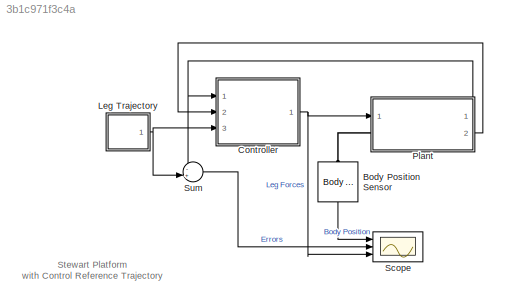
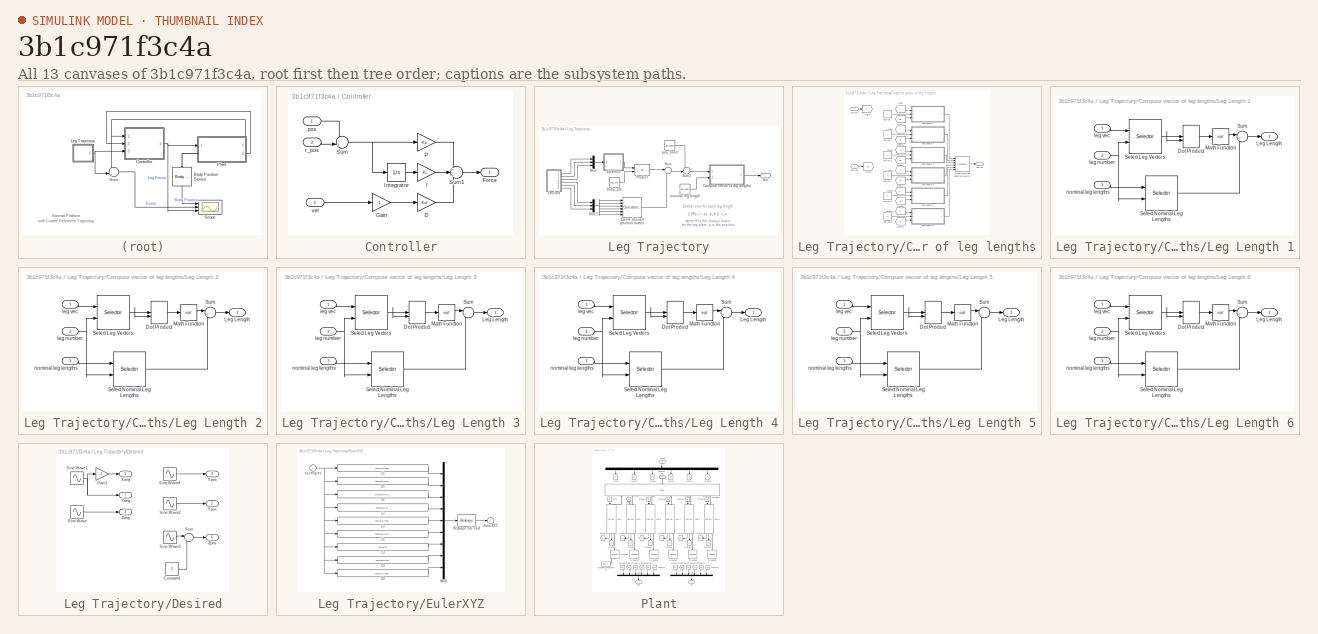
[diagram: thumbnail index - all 13 canvases of the model, root first then tree order]
MODEL slx_3b1c971f3c4a
KIND model
CONFIG AbsTol = auto
CONFIG EnableMultiTasking = on
CONFIG FixedStep = auto
CONFIG InitFcn = find_system(gcs,'FollowLinks', 'on', 'LookUnderMasks', 'all');
CONFIG MaxStep = auto
CONFIG MinStep = auto
CONFIG PostLoadFcn = find_system(gcs,'FollowLinks', 'on', 'LookUnderMasks', 'all');
CONFIG PreLoadFcn = mech_stewartplatform_dat
CONFIG RelTol = 1e-3
CONFIG SampleTimeConstraint = Unconstrained
CONFIG Solver = ode45
CONFIG SolverName = ode45
CONFIG StartTime = 0.0
CONFIG StopTime = inf
BLOCK [Reference] Body Position Sensor  REF=mblibv1/Sensors & 
Actuators/Body Sensor
  Ports = [0, 1, 0, 0, 0, 1]
  SourceBlock = mblibv1/Sensors & \nActuators/Body Sensor
  SourceProductBaseCode = MS
  SourceProductName = Simscape Multibody
  SourceType = Body Sensor
BLOCK [SubSystem] Controller
  Ports = [3, 1]
  RequestExecContextInheritance = off
  Variant = off
BLOCK [Gain] Controller/D
  Gain = Kd
BLOCK [Outport] Controller/Force
  IconDisplay = Port number
BLOCK [Gain] Controller/Gain
  Gain = -1
BLOCK [Gain] Controller/I
  Gain = Ki
BLOCK [Integrator] Controller/Integrator
  InitialCondition = (upper_leg_mass+lower_leg_mass+(top_mass*1.3/6))*9.81/Ki
  Ports = [1, 1]
  ZeroCross = off
BLOCK [Gain] Controller/P
  Gain = Kp
BLOCK [Sum] Controller/Sum
  IconShape = round
  Inputs = -+|
  Ports = [2, 1]
BLOCK [Sum] Controller/Sum1
  IconShape = round
  Inputs = +++
  Ports = [3, 1]
BLOCK [Inport] Controller/pos
  IconDisplay = Port number
BLOCK [Inport] Controller/r_pos
  IconDisplay = Port number
  Port = 3
BLOCK [Inport] Controller/vel
  IconDisplay = Port number
  Port = 2
BLOCK [SubSystem] Leg Trajectory
  Ports = [0, 1]
  RequestExecContextInheritance = off
  Variant = off
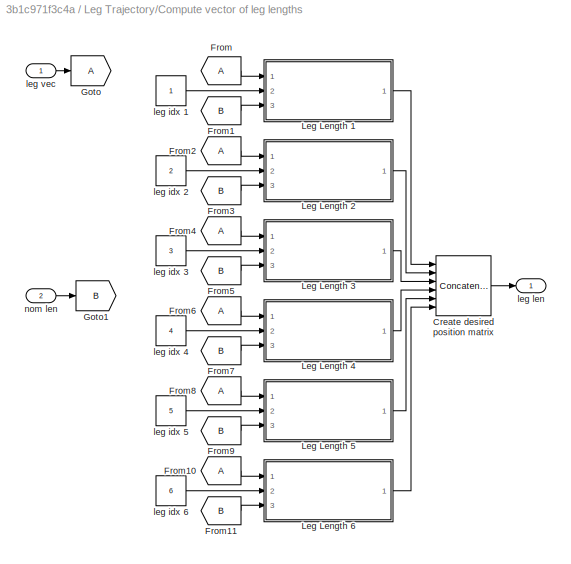
BLOCK [SubSystem] Leg Trajectory/Compute vector of leg lengths
  Ports = [2, 1]
  RequestExecContextInheritance = off
  TreatAsAtomicUnit = on
  Variant = off
BLOCK [Concatenate] Leg Trajectory/Compute vector of leg lengths/Create desired position matrix
  ConcatenateDimension = 2
  Mode = Multidimensional array
  NumInputs = 6
  Ports = [6, 1]
BLOCK [From] Leg Trajectory/Compute vector of leg lengths/From
  CloseFcn = tagdialog Close
BLOCK [From] Leg Trajectory/Compute vector of leg lengths/From1
  CloseFcn = tagdialog Close
  GotoTag = B
BLOCK [From] Leg Trajectory/Compute vector of leg lengths/From10
  CloseFcn = tagdialog Close
BLOCK [From] Leg Trajectory/Compute vector of leg lengths/From11
  CloseFcn = tagdialog Close
  GotoTag = B
BLOCK [From] Leg Trajectory/Compute vector of leg lengths/From2
  CloseFcn = tagdialog Close
BLOCK [From] Leg Trajectory/Compute vector of leg lengths/From3
  CloseFcn = tagdialog Close
  GotoTag = B
BLOCK [From] Leg Trajectory/Compute vector of leg lengths/From4
  CloseFcn = tagdialog Close
BLOCK [From] Leg Trajectory/Compute vector of leg lengths/From5
  CloseFcn = tagdialog Close
  GotoTag = B
BLOCK [From] Leg Trajectory/Compute vector of leg lengths/From6
  CloseFcn = tagdialog Close
BLOCK [From] Leg Trajectory/Compute vector of leg lengths/From7
  CloseFcn = tagdialog Close
  GotoTag = B
BLOCK [From] Leg Trajectory/Compute vector of leg lengths/From8
  CloseFcn = tagdialog Close
BLOCK [From] Leg Trajectory/Compute vector of leg lengths/From9
  CloseFcn = tagdialog Close
  GotoTag = B
BLOCK [Goto] Leg Trajectory/Compute vector of leg lengths/Goto
BLOCK [Goto] Leg Trajectory/Compute vector of leg lengths/Goto1
  GotoTag = B
BLOCK [SubSystem] Leg Trajectory/Compute vector of leg lengths/Leg Length 1
  Ports = [3, 1]
  RequestExecContextInheritance = off
  Variant = off
BLOCK [DotProduct] Leg Trajectory/Compute vector of leg lengths/Leg Length 1/Dot Product
  InputSameDT = off
  OutDataTypeStr = Inherit: Inherit via internal rule
BLOCK [Outport] Leg Trajectory/Compute vector of leg lengths/Leg Length 1/Leg Length
  IconDisplay = Port number
BLOCK [Math] Leg Trajectory/Compute vector of leg lengths/Leg Length 1/Math Function
  Operator = sqrt
  Ports = [1, 1]
BLOCK [Selector] Leg Trajectory/Compute vector of leg lengths/Leg Length 1/Select Leg Vectors
  IndexOptions = Select all,Index vector (port)
  Indices = -1,1
  InputPortWidth = 3
  NumberOfDimensions = 2
  OutputSizes = 1
  Ports = [2, 1]
BLOCK [Selector] Leg Trajectory/Compute vector of leg lengths/Leg Length 1/Select Nominal Leg Lengths
  IndexOptions = Index vector (port)
  Indices = [1 3]
  InputPortWidth = 6
  OutputSizes = 1
  Ports = [2, 1]
BLOCK [Sum] Leg Trajectory/Compute vector of leg lengths/Leg Length 1/Sum
  IconShape = round
  Inputs = |+-
  Ports = [2, 1]
BLOCK [Inport] Leg Trajectory/Compute vector of leg lengths/Leg Length 1/leg number
  IconDisplay = Port number
  Port = 2
BLOCK [Inport] Leg Trajectory/Compute vector of leg lengths/Leg Length 1/leg vec
  IconDisplay = Port number
BLOCK [Inport] Leg Trajectory/Compute vector of leg lengths/Leg Length 1/nominal leg lengths
  IconDisplay = Port number
  Port = 3
BLOCK [SubSystem] Leg Trajectory/Compute vector of leg lengths/Leg Length 2
  Ports = [3, 1]
  RequestExecContextInheritance = off
  Variant = off
BLOCK [DotProduct] Leg Trajectory/Compute vector of leg lengths/Leg Length 2/Dot Product
  InputSameDT = off
  OutDataTypeStr = Inherit: Inherit via internal rule
BLOCK [Outport] Leg Trajectory/Compute vector of leg lengths/Leg Length 2/Leg Length
  IconDisplay = Port number
BLOCK [Math] Leg Trajectory/Compute vector of leg lengths/Leg Length 2/Math Function
  Operator = sqrt
  Ports = [1, 1]
BLOCK [Selector] Leg Trajectory/Compute vector of leg lengths/Leg Length 2/Select Leg Vectors
  IndexOptions = Select all,Index vector (port)
  Indices = -1,1
  InputPortWidth = 3
  NumberOfDimensions = 2
  OutputSizes = 1
  Ports = [2, 1]
BLOCK [Selector] Leg Trajectory/Compute vector of leg lengths/Leg Length 2/Select Nominal Leg Lengths
  IndexOptions = Index vector (port)
  Indices = [1 3]
  InputPortWidth = 6
  OutputSizes = 1
  Ports = [2, 1]
BLOCK [Sum] Leg Trajectory/Compute vector of leg lengths/Leg Length 2/Sum
  IconShape = round
  Inputs = |+-
  Ports = [2, 1]
BLOCK [Inport] Leg Trajectory/Compute vector of leg lengths/Leg Length 2/leg number
  IconDisplay = Port number
  Port = 2
BLOCK [Inport] Leg Trajectory/Compute vector of leg lengths/Leg Length 2/leg vec
  IconDisplay = Port number
BLOCK [Inport] Leg Trajectory/Compute vector of leg lengths/Leg Length 2/nominal leg lengths
  IconDisplay = Port number
  Port = 3
BLOCK [SubSystem] Leg Trajectory/Compute vector of leg lengths/Leg Length 3
  Ports = [3, 1]
  RequestExecContextInheritance = off
  Variant = off
BLOCK [DotProduct] Leg Trajectory/Compute vector of leg lengths/Leg Length 3/Dot Product
  InputSameDT = off
  OutDataTypeStr = Inherit: Inherit via internal rule
BLOCK [Outport] Leg Trajectory/Compute vector of leg lengths/Leg Length 3/Leg Length
  IconDisplay = Port number
BLOCK [Math] Leg Trajectory/Compute vector of leg lengths/Leg Length 3/Math Function
  Operator = sqrt
  Ports = [1, 1]
BLOCK [Selector] Leg Trajectory/Compute vector of leg lengths/Leg Length 3/Select Leg Vectors
  IndexOptions = Select all,Index vector (port)
  Indices = -1,1
  InputPortWidth = 3
  NumberOfDimensions = 2
  OutputSizes = 1
  Ports = [2, 1]
BLOCK [Selector] Leg Trajectory/Compute vector of leg lengths/Leg Length 3/Select Nominal Leg Lengths
  IndexOptions = Index vector (port)
  Indices = [1 3]
  InputPortWidth = 6
  OutputSizes = 1
  Ports = [2, 1]
BLOCK [Sum] Leg Trajectory/Compute vector of leg lengths/Leg Length 3/Sum
  IconShape = round
  Inputs = |+-
  Ports = [2, 1]
BLOCK [Inport] Leg Trajectory/Compute vector of leg lengths/Leg Length 3/leg number
  IconDisplay = Port number
  Port = 2
BLOCK [Inport] Leg Trajectory/Compute vector of leg lengths/Leg Length 3/leg vec
  IconDisplay = Port number
BLOCK [Inport] Leg Trajectory/Compute vector of leg lengths/Leg Length 3/nominal leg lengths
  IconDisplay = Port number
  Port = 3
BLOCK [SubSystem] Leg Trajectory/Compute vector of leg lengths/Leg Length 4
  Ports = [3, 1]
  RequestExecContextInheritance = off
  Variant = off
BLOCK [DotProduct] Leg Trajectory/Compute vector of leg lengths/Leg Length 4/Dot Product
  InputSameDT = off
  OutDataTypeStr = Inherit: Inherit via internal rule
BLOCK [Outport] Leg Trajectory/Compute vector of leg lengths/Leg Length 4/Leg Length
  IconDisplay = Port number
BLOCK [Math] Leg Trajectory/Compute vector of leg lengths/Leg Length 4/Math Function
  Operator = sqrt
  Ports = [1, 1]
BLOCK [Selector] Leg Trajectory/Compute vector of leg lengths/Leg Length 4/Select Leg Vectors
  IndexOptions = Select all,Index vector (port)
  Indices = -1,1
  InputPortWidth = 3
  NumberOfDimensions = 2
  OutputSizes = 1
  Ports = [2, 1]
BLOCK [Selector] Leg Trajectory/Compute vector of leg lengths/Leg Length 4/Select Nominal Leg Lengths
  IndexOptions = Index vector (port)
  Indices = [1 3]
  InputPortWidth = 6
  OutputSizes = 1
  Ports = [2, 1]
BLOCK [Sum] Leg Trajectory/Compute vector of leg lengths/Leg Length 4/Sum
  IconShape = round
  Inputs = |+-
  Ports = [2, 1]
BLOCK [Inport] Leg Trajectory/Compute vector of leg lengths/Leg Length 4/leg number
  IconDisplay = Port number
  Port = 2
BLOCK [Inport] Leg Trajectory/Compute vector of leg lengths/Leg Length 4/leg vec
  IconDisplay = Port number
BLOCK [Inport] Leg Trajectory/Compute vector of leg lengths/Leg Length 4/nominal leg lengths
  IconDisplay = Port number
  Port = 3
BLOCK [SubSystem] Leg Trajectory/Compute vector of leg lengths/Leg Length 5
  Ports = [3, 1]
  RequestExecContextInheritance = off
  Variant = off
BLOCK [DotProduct] Leg Trajectory/Compute vector of leg lengths/Leg Length 5/Dot Product
  InputSameDT = off
  OutDataTypeStr = Inherit: Inherit via internal rule
BLOCK [Outport] Leg Trajectory/Compute vector of leg lengths/Leg Length 5/Leg Length
  IconDisplay = Port number
BLOCK [Math] Leg Trajectory/Compute vector of leg lengths/Leg Length 5/Math Function
  Operator = sqrt
  Ports = [1, 1]
BLOCK [Selector] Leg Trajectory/Compute vector of leg lengths/Leg Length 5/Select Leg Vectors
  IndexOptions = Select all,Index vector (port)
  Indices = -1,1
  InputPortWidth = 3
  NumberOfDimensions = 2
  OutputSizes = 1
  Ports = [2, 1]
BLOCK [Selector] Leg Trajectory/Compute vector of leg lengths/Leg Length 5/Select Nominal Leg Lengths
  IndexOptions = Index vector (port)
  Indices = [1 3]
  InputPortWidth = 6
  OutputSizes = 1
  Ports = [2, 1]
BLOCK [Sum] Leg Trajectory/Compute vector of leg lengths/Leg Length 5/Sum
  IconShape = round
  Inputs = |+-
  Ports = [2, 1]
BLOCK [Inport] Leg Trajectory/Compute vector of leg lengths/Leg Length 5/leg number
  IconDisplay = Port number
  Port = 2
BLOCK [Inport] Leg Trajectory/Compute vector of leg lengths/Leg Length 5/leg vec
  IconDisplay = Port number
BLOCK [Inport] Leg Trajectory/Compute vector of leg lengths/Leg Length 5/nominal leg lengths
  IconDisplay = Port number
  Port = 3
BLOCK [SubSystem] Leg Trajectory/Compute vector of leg lengths/Leg Length 6
  Ports = [3, 1]
  RequestExecContextInheritance = off
  Variant = off
BLOCK [DotProduct] Leg Trajectory/Compute vector of leg lengths/Leg Length 6/Dot Product
  InputSameDT = off
  OutDataTypeStr = Inherit: Inherit via internal rule
BLOCK [Outport] Leg Trajectory/Compute vector of leg lengths/Leg Length 6/Leg Length
  IconDisplay = Port number
BLOCK [Math] Leg Trajectory/Compute vector of leg lengths/Leg Length 6/Math Function
  Operator = sqrt
  Ports = [1, 1]
BLOCK [Selector] Leg Trajectory/Compute vector of leg lengths/Leg Length 6/Select Leg Vectors
  IndexOptions = Select all,Index vector (port)
  Indices = -1,1
  InputPortWidth = 3
  NumberOfDimensions = 2
  OutputSizes = 1
  Ports = [2, 1]
BLOCK [Selector] Leg Trajectory/Compute vector of leg lengths/Leg Length 6/Select Nominal Leg Lengths
  IndexOptions = Index vector (port)
  Indices = [1 3]
  InputPortWidth = 6
  OutputSizes = 1
  Ports = [2, 1]
BLOCK [Sum] Leg Trajectory/Compute vector of leg lengths/Leg Length 6/Sum
  IconShape = round
  Inputs = |+-
  Ports = [2, 1]
BLOCK [Inport] Leg Trajectory/Compute vector of leg lengths/Leg Length 6/leg number
  IconDisplay = Port number
  Port = 2
BLOCK [Inport] Leg Trajectory/Compute vector of leg lengths/Leg Length 6/leg vec
  IconDisplay = Port number
BLOCK [Inport] Leg Trajectory/Compute vector of leg lengths/Leg Length 6/nominal leg lengths
  IconDisplay = Port number
  Port = 3
BLOCK [Constant] Leg Trajectory/Compute vector of leg lengths/leg idx 1
BLOCK [Constant] Leg Trajectory/Compute vector of leg lengths/leg idx 2
  Value = 2
BLOCK [Constant] Leg Trajectory/Compute vector of leg lengths/leg idx 3
  Value = 3
BLOCK [Constant] Leg Trajectory/Compute vector of leg lengths/leg idx 4
  Value = 4
BLOCK [Constant] Leg Trajectory/Compute vector of leg lengths/leg idx 5
  Value = 5
BLOCK [Constant] Leg Trajectory/Compute vector of leg lengths/leg idx 6
  Value = 6
BLOCK [Outport] Leg Trajectory/Compute vector of leg lengths/leg len
  IconDisplay = Port number
BLOCK [Inport] Leg Trajectory/Compute vector of leg lengths/leg vec
  IconDisplay = Port number
BLOCK [Inport] Leg Trajectory/Compute vector of leg lengths/nom len
  IconDisplay = Port number
  Port = 2
BLOCK [Concatenate] Leg Trajectory/Create desired position matrix
  ConcatenateDimension = 2
  Mode = Multidimensional array
  NumInputs = 6
  Ports = [6, 1]
BLOCK [SubSystem] Leg Trajectory/Desired
  Ports = [0, 6]
  RequestExecContextInheritance = off
  Variant = off
BLOCK [Constant] Leg Trajectory/Desired/Constant1
  Value = 3
BLOCK [Gain] Leg Trajectory/Desired/Gain1
  Gain = -1
BLOCK [Sin] Leg Trajectory/Desired/Sine Wave
  Amplitude = 0.3
  Frequency = 3
  Ports = [0, 1]
  SampleTime = 0
BLOCK [Sin] Leg Trajectory/Desired/Sine Wave1
  Amplitude = 0.3
  Frequency = 3
  Ports = [0, 1]
  SampleTime = 0
BLOCK [Sin] Leg Trajectory/Desired/Sine Wave2
  Amplitude = 0.25
  Frequency = 3
  Phase = pi/2
  Ports = [0, 1]
  SampleTime = 0
BLOCK [Sin] Leg Trajectory/Desired/Sine Wave3
  Amplitude = 0.25
  Frequency = 3
  Ports = [0, 1]
  SampleTime = 0
BLOCK [Sin] Leg Trajectory/Desired/Sine Wave4
  Amplitude = 0.5
  Frequency = 3
  Ports = [0, 1]
  SampleTime = 0
BLOCK [Sum] Leg Trajectory/Desired/Sum
  IconShape = round
  Inputs = |++
  Ports = [2, 1]
BLOCK [Outport] Leg Trajectory/Desired/Xang
  IconDisplay = Port number
BLOCK [Outport] Leg Trajectory/Desired/Xpos
  IconDisplay = Port number
  Port = 4
BLOCK [Outport] Leg Trajectory/Desired/Yang
  IconDisplay = Port number
  Port = 2
BLOCK [Outport] Leg Trajectory/Desired/Ypos
  IconDisplay = Port number
  Port = 5
BLOCK [Outport] Leg Trajectory/Desired/Zang
  IconDisplay = Port number
  Port = 3
BLOCK [Outport] Leg Trajectory/Desired/Zpos
  IconDisplay = Port number
  Port = 6
BLOCK [SubSystem] Leg Trajectory/EulerXYZ
  Ports = [1, 1]
  RequestExecContextInheritance = off
  ShowPortLabels = none
  Variant = off
BLOCK [Fcn] Leg Trajectory/EulerXYZ/11
  Expr = cos(u[2])*cos(u[3])
BLOCK [Fcn] Leg Trajectory/EulerXYZ/12
  Expr = -cos(u[2])*sin(u[3])
BLOCK [Fcn] Leg Trajectory/EulerXYZ/13
  Expr = sin(u[2])
BLOCK [Fcn] Leg Trajectory/EulerXYZ/21
  Expr = cos(u[3])*sin(u[2])*sin(u[1])+cos(u[1])*sin(u[3])
BLOCK [Fcn] Leg Trajectory/EulerXYZ/22
  Expr = cos(u[1])*cos(u[3]) - sin(u[1])*sin(u[2])*sin(u[3])
BLOCK [Fcn] Leg Trajectory/EulerXYZ/23
  Expr = -sin(u[1])*cos(u[2])
BLOCK [Fcn] Leg Trajectory/EulerXYZ/31
  Expr = sin(u[1])*sin(u[3]) - cos(u[1])*cos(u[3])*sin(u[2])
BLOCK [Fcn] Leg Trajectory/EulerXYZ/32
  Expr = cos(u[3])*sin(u[1])+cos(u[1])*sin(u[2])*sin(u[3])
BLOCK [Fcn] Leg Trajectory/EulerXYZ/33
  Expr = cos(u[1])*cos(u[2])
BLOCK [Outport] Leg Trajectory/EulerXYZ/EulerXYZ
  IconDisplay = Port number
  InitialOutput = 0
BLOCK [Mux] Leg Trajectory/EulerXYZ/Mux2
  DisplayOption = bar
  Inputs = 9
  Ports = [9, 1]
BLOCK [Reshape] Leg Trajectory/EulerXYZ/Reshape 9x1->3x3
  OutputDimensionality = Customize
  OutputDimensions = [3,3]
  Ports = [1, 1]
BLOCK [Inport] Leg Trajectory/EulerXYZ/x y z angles
  IconDisplay = Port number
BLOCK [Mux] Leg Trajectory/Mux
  DisplayOption = bar
  Inputs = 3
  Ports = [3, 1]
BLOCK [Mux] Leg Trajectory/Mux1
  DisplayOption = bar
  Inputs = 3
  Ports = [3, 1]
BLOCK [Product] Leg Trajectory/Product
  Multiplication = Matrix(*)
  Ports = [2, 1]
  RndMeth = Floor
BLOCK [Sum] Leg Trajectory/Sum
  IconShape = round
  Inputs = |++
  Ports = [2, 1]
BLOCK [Sum] Leg Trajectory/Sum1
  IconShape = round
  Inputs = -+|
  Ports = [2, 1]
BLOCK [Constant] Leg Trajectory/body_pts
  Value = body_pts
  VectorParams1D = off
BLOCK [Outport] Leg Trajectory/len
  IconDisplay = Port number
BLOCK [Constant] Leg Trajectory/nominal leg length
  Value = leg_length'
  VectorParams1D = off
BLOCK [Constant] Leg Trajectory/pos_base
  Value = pos_base'
  VectorParams1D = off
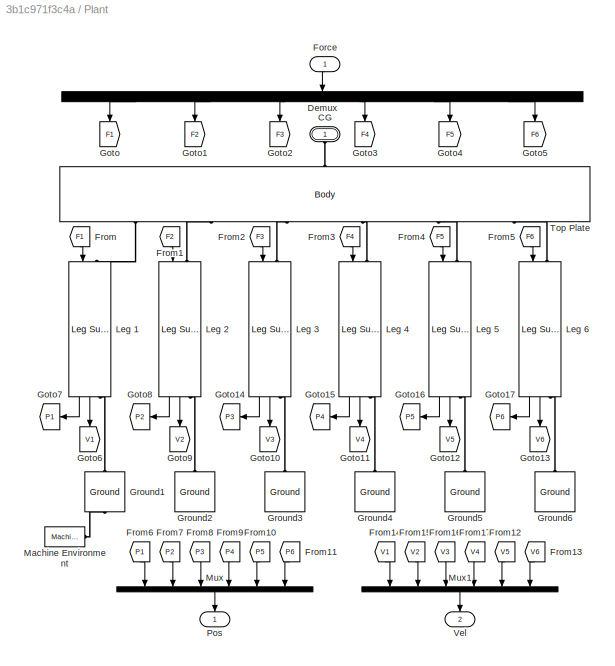
BLOCK [SubSystem] Plant
  Ports = [1, 2, 0, 0, 0, 1]
  RequestExecContextInheritance = off
  Variant = off
BLOCK [PMIOPort] Plant/CG
  Port = 1
  Side = Left
BLOCK [Demux] Plant/Demux
  Outputs = 6
  Ports = [1, 6]
BLOCK [Inport] Plant/Force
  IconDisplay = Port number
BLOCK [From] Plant/From
  CloseFcn = tagdialog Close
  GotoTag = F1
BLOCK [From] Plant/From1
  CloseFcn = tagdialog Close
  GotoTag = F2
BLOCK [From] Plant/From10
  CloseFcn = tagdialog Close
  GotoTag = P5
BLOCK [From] Plant/From11
  CloseFcn = tagdialog Close
  GotoTag = P6
BLOCK [From] Plant/From12
  CloseFcn = tagdialog Close
  GotoTag = V5
BLOCK [From] Plant/From13
  CloseFcn = tagdialog Close
  GotoTag = V6
BLOCK [From] Plant/From14
  CloseFcn = tagdialog Close
  GotoTag = V1
BLOCK [From] Plant/From15
  CloseFcn = tagdialog Close
  GotoTag = V2
BLOCK [From] Plant/From16
  CloseFcn = tagdialog Close
  GotoTag = V3
BLOCK [From] Plant/From17
  CloseFcn = tagdialog Close
  GotoTag = V4
BLOCK [From] Plant/From2
  CloseFcn = tagdialog Close
  GotoTag = F3
BLOCK [From] Plant/From3
  CloseFcn = tagdialog Close
  GotoTag = F4
BLOCK [From] Plant/From4
  CloseFcn = tagdialog Close
  GotoTag = F5
BLOCK [From] Plant/From5
  CloseFcn = tagdialog Close
  GotoTag = F6
BLOCK [From] Plant/From6
  CloseFcn = tagdialog Close
  GotoTag = P1
BLOCK [From] Plant/From7
  CloseFcn = tagdialog Close
  GotoTag = P2
BLOCK [From] Plant/From8
  CloseFcn = tagdialog Close
  GotoTag = P3
BLOCK [From] Plant/From9
  CloseFcn = tagdialog Close
  GotoTag = P4
BLOCK [Goto] Plant/Goto
  GotoTag = F1
BLOCK [Goto] Plant/Goto1
  GotoTag = F2
BLOCK [Goto] Plant/Goto10
  GotoTag = V3
BLOCK [Goto] Plant/Goto11
  GotoTag = V4
BLOCK [Goto] Plant/Goto12
  GotoTag = V5
BLOCK [Goto] Plant/Goto13
  GotoTag = V6
BLOCK [Goto] Plant/Goto14
  GotoTag = P3
BLOCK [Goto] Plant/Goto15
  GotoTag = P4
BLOCK [Goto] Plant/Goto16
  GotoTag = P5
BLOCK [Goto] Plant/Goto17
  GotoTag = P6
BLOCK [Goto] Plant/Goto2
  GotoTag = F3
BLOCK [Goto] Plant/Goto3
  GotoTag = F4
BLOCK [Goto] Plant/Goto4
  GotoTag = F5
BLOCK [Goto] Plant/Goto5
  GotoTag = F6
BLOCK [Goto] Plant/Goto6
  GotoTag = V1
BLOCK [Goto] Plant/Goto7
  GotoTag = P1
BLOCK [Goto] Plant/Goto8
  GotoTag = P2
BLOCK [Goto] Plant/Goto9
  GotoTag = V2
BLOCK [Reference] Plant/Ground1  REF=mblibv1/Bodies/Ground
  Ports = [0, 0, 0, 0, 0, 1, 1]
  SourceBlock = mblibv1/Bodies/Ground
  SourceProductBaseCode = MS
  SourceProductName = Simscape Multibody
  SourceType = Ground
  UserDataPersistent = on
BLOCK [Reference] Plant/Ground2  REF=mblibv1/Bodies/Ground
  Ports = [0, 0, 0, 0, 0, 0, 1]
  SourceBlock = mblibv1/Bodies/Ground
  SourceProductBaseCode = MS
  SourceProductName = Simscape Multibody
  SourceType = Ground
  UserDataPersistent = on
BLOCK [Reference] Plant/Ground3  REF=mblibv1/Bodies/Ground
  Ports = [0, 0, 0, 0, 0, 0, 1]
  SourceBlock = mblibv1/Bodies/Ground
  SourceProductBaseCode = MS
  SourceProductName = Simscape Multibody
  SourceType = Ground
  UserDataPersistent = on
BLOCK [Reference] Plant/Ground4  REF=mblibv1/Bodies/Ground
  Ports = [0, 0, 0, 0, 0, 0, 1]
  SourceBlock = mblibv1/Bodies/Ground
  SourceProductBaseCode = MS
  SourceProductName = Simscape Multibody
  SourceType = Ground
  UserDataPersistent = on
BLOCK [Reference] Plant/Ground5  REF=mblibv1/Bodies/Ground
  Ports = [0, 0, 0, 0, 0, 0, 1]
  SourceBlock = mblibv1/Bodies/Ground
  SourceProductBaseCode = MS
  SourceProductName = Simscape Multibody
  SourceType = Ground
  UserDataPersistent = on
BLOCK [Reference] Plant/Ground6  REF=mblibv1/Bodies/Ground
  Ports = [0, 0, 0, 0, 0, 0, 1]
  SourceBlock = mblibv1/Bodies/Ground
  SourceProductBaseCode = MS
  SourceProductName = Simscape Multibody
  SourceType = Ground
  UserDataPersistent = on
BLOCK [Reference] Plant/Leg 1  REF=mech_stewartplatform_leg/Leg  (lib defined in mdl_1e59cc369c40, mdl_91b229a877f2, +5 more)
Subsystem
  Ports = [1, 2, 0, 0, 0, 1, 1]
  SourceBlock = mech_stewartplatform_leg/Leg\nSubsystem
BLOCK [Reference] Plant/Leg 2  REF=mech_stewartplatform_leg/Leg  (lib defined in mdl_1e59cc369c40, mdl_91b229a877f2, +5 more)
Subsystem
  Ports = [1, 2, 0, 0, 0, 1, 1]
  SourceBlock = mech_stewartplatform_leg/Leg\nSubsystem
BLOCK [Reference] Plant/Leg 3  REF=mech_stewartplatform_leg/Leg  (lib defined in mdl_1e59cc369c40, mdl_91b229a877f2, +5 more)
Subsystem
  Ports = [1, 2, 0, 0, 0, 1, 1]
  SourceBlock = mech_stewartplatform_leg/Leg\nSubsystem
BLOCK [Reference] Plant/Leg 4  REF=mech_stewartplatform_leg/Leg  (lib defined in mdl_1e59cc369c40, mdl_91b229a877f2, +5 more)
Subsystem
  Ports = [1, 2, 0, 0, 0, 1, 1]
  SourceBlock = mech_stewartplatform_leg/Leg\nSubsystem
BLOCK [Reference] Plant/Leg 5  REF=mech_stewartplatform_leg/Leg  (lib defined in mdl_1e59cc369c40, mdl_91b229a877f2, +5 more)
Subsystem
  Ports = [1, 2, 0, 0, 0, 1, 1]
  SourceBlock = mech_stewartplatform_leg/Leg\nSubsystem
BLOCK [Reference] Plant/Leg 6  REF=mech_stewartplatform_leg/Leg  (lib defined in mdl_1e59cc369c40, mdl_91b229a877f2, +5 more)
Subsystem
  Ports = [1, 2, 0, 0, 0, 1, 1]
  SourceBlock = mech_stewartplatform_leg/Leg\nSubsystem
BLOCK [Reference] Plant/Machine Environment  REF=mblibv1/Bodies/Machine
Environment
  Ports = [0, 0, 0, 0, 0, 0, 1]
  SourceBlock = mblibv1/Bodies/Machine\nEnvironment
  SourceProductBaseCode = MS
  SourceProductName = Simscape Multibody
  SourceType = Machine Environment
  Tag = Factory ground
BLOCK [Mux] Plant/Mux
  DisplayOption = bar
  Inputs = 6
  Ports = [6, 1]
BLOCK [Mux] Plant/Mux1
  DisplayOption = bar
  Inputs = 6
  Ports = [6, 1]
BLOCK [Outport] Plant/Pos
  IconDisplay = Port number
BLOCK [Reference] Plant/Top Plate  REF=mblibv1/Bodies/Body
  Ports = [0, 0, 0, 0, 0, 1, 6]
  SourceBlock = mblibv1/Bodies/Body
  SourceProductBaseCode = MS
  SourceProductName = Simscape Multibody
  SourceType = Body
BLOCK [Outport] Plant/Vel
  IconDisplay = Port number
  Port = 2
BLOCK [Scope] Scope
  NumInputPorts = 3
  Ports = [3]
  ScopeSpecificationString = C++SS(StrPVP('Location','[460, 57, 941, 666]'),StrPVP('Open','off'),MxPVP('AxesTitles',53,'struct(''axes1'',''%<SignalLabel>'',''axes2'',''%<SignalLabel>'',''axes3'',''%<SignalLabel>'')'),StrPVP('ShowLegends','off'),StrPVP('TimeRange','14'),StrPVP('YMin','-0.75~-0.1~-5000'),StrPVP('YMax','3.5~0.1~20000'),StrPVP('DataFormat','StructureWithTime'),StrPVP('BlockParamSampleTime','0'),StrPVP('LimitDataP...<+76ch>
  Tag = OpenMeAtStartUp
BLOCK [Sum] Sum
  IconShape = round
  Inputs = -+|
  Ports = [2, 1]
ANNOTATION (root): Stewart Platform with Control Reference Trajectory
ANNOTATION Leg Trajectory: Control error for each leg length: || (R*p_t + p) - p_b || - l_n , where R is the rotation matrix for the top plate, p is the position of the origin of the top plate, p_t is the leg attachment point at the top plate, p_b is the leg attachment point at the base, and l_n is the nominal (reference) distance between the top and base attachment points.
LINE Body Position Sensor:1 -> Scope:1
LINE Controller/D:1 -> Controller/Sum1:3
LINE Controller/Gain:1 -> Controller/D:1
LINE Controller/I:1 -> Controller/Sum1:2
LINE Controller/Integrator:1 -> Controller/I:1
LINE Controller/P:1 -> Controller/Sum1:1
LINE Controller/Sum1:1 -> Controller/Force:1
NET Controller/Sum:1 -> Controller/Integrator:1, Controller/P:1
LINE Controller/pos:1 -> Controller/Sum:1
LINE Controller/r_pos:1 -> Controller/Sum:2
LINE Controller/vel:1 -> Controller/Gain:1
NET Controller:1 -> Plant:1, Scope:3
LINE Leg Trajectory/Compute vector of leg lengths/Create desired position matrix:1 -> Leg Trajectory/Compute vector of leg lengths/leg len:1
LINE Leg Trajectory/Compute vector of leg lengths/From10:1 -> Leg Trajectory/Compute vector of leg lengths/Leg Length 6:1
LINE Leg Trajectory/Compute vector of leg lengths/From11:1 -> Leg Trajectory/Compute vector of leg lengths/Leg Length 6:3
LINE Leg Trajectory/Compute vector of leg lengths/From1:1 -> Leg Trajectory/Compute vector of leg lengths/Leg Length 1:3
LINE Leg Trajectory/Compute vector of leg lengths/From2:1 -> Leg Trajectory/Compute vector of leg lengths/Leg Length 2:1
LINE Leg Trajectory/Compute vector of leg lengths/From3:1 -> Leg Trajectory/Compute vector of leg lengths/Leg Length 2:3
LINE Leg Trajectory/Compute vector of leg lengths/From4:1 -> Leg Trajectory/Compute vector of leg lengths/Leg Length 3:1
LINE Leg Trajectory/Compute vector of leg lengths/From5:1 -> Leg Trajectory/Compute vector of leg lengths/Leg Length 3:3
LINE Leg Trajectory/Compute vector of leg lengths/From6:1 -> Leg Trajectory/Compute vector of leg lengths/Leg Length 4:1
LINE Leg Trajectory/Compute vector of leg lengths/From7:1 -> Leg Trajectory/Compute vector of leg lengths/Leg Length 4:3
LINE Leg Trajectory/Compute vector of leg lengths/From8:1 -> Leg Trajectory/Compute vector of leg lengths/Leg Length 5:1
LINE Leg Trajectory/Compute vector of leg lengths/From9:1 -> Leg Trajectory/Compute vector of leg lengths/Leg Length 5:3
LINE Leg Trajectory/Compute vector of leg lengths/From:1 -> Leg Trajectory/Compute vector of leg lengths/Leg Length 1:1
LINE Leg Trajectory/Compute vector of leg lengths/Leg Length 1/Dot Product:1 -> Leg Trajectory/Compute vector of leg lengths/Leg Length 1/Math Function:1
LINE Leg Trajectory/Compute vector of leg lengths/Leg Length 1/Math Function:1 -> Leg Trajectory/Compute vector of leg lengths/Leg Length 1/Sum:1
NET Leg Trajectory/Compute vector of leg lengths/Leg Length 1/Select Leg Vectors:1 -> Leg Trajectory/Compute vector of leg lengths/Leg Length 1/Dot Product:1, Leg Trajectory/Compute vector of leg lengths/Leg Length 1/Dot Product:2
LINE Leg Trajectory/Compute vector of leg lengths/Leg Length 1/Select Nominal Leg Lengths:1 -> Leg Trajectory/Compute vector of leg lengths/Leg Length 1/Sum:2
LINE Leg Trajectory/Compute vector of leg lengths/Leg Length 1/Sum:1 -> Leg Trajectory/Compute vector of leg lengths/Leg Length 1/Leg Length:1
NET Leg Trajectory/Compute vector of leg lengths/Leg Length 1/leg number:1 -> Leg Trajectory/Compute vector of leg lengths/Leg Length 1/Select Leg Vectors:2, Leg Trajectory/Compute vector of leg lengths/Leg Length 1/Select Nominal Leg Lengths:2
LINE Leg Trajectory/Compute vector of leg lengths/Leg Length 1/leg vec:1 -> Leg Trajectory/Compute vector of leg lengths/Leg Length 1/Select Leg Vectors:1
LINE Leg Trajectory/Compute vector of leg lengths/Leg Length 1/nominal leg lengths:1 -> Leg Trajectory/Compute vector of leg lengths/Leg Length 1/Select Nominal Leg Lengths:1
LINE Leg Trajectory/Compute vector of leg lengths/Leg Length 1:1 -> Leg Trajectory/Compute vector of leg lengths/Create desired position matrix:1
LINE Leg Trajectory/Compute vector of leg lengths/Leg Length 2/Dot Product:1 -> Leg Trajectory/Compute vector of leg lengths/Leg Length 2/Math Function:1
LINE Leg Trajectory/Compute vector of leg lengths/Leg Length 2/Math Function:1 -> Leg Trajectory/Compute vector of leg lengths/Leg Length 2/Sum:1
NET Leg Trajectory/Compute vector of leg lengths/Leg Length 2/Select Leg Vectors:1 -> Leg Trajectory/Compute vector of leg lengths/Leg Length 2/Dot Product:1, Leg Trajectory/Compute vector of leg lengths/Leg Length 2/Dot Product:2
LINE Leg Trajectory/Compute vector of leg lengths/Leg Length 2/Select Nominal Leg Lengths:1 -> Leg Trajectory/Compute vector of leg lengths/Leg Length 2/Sum:2
LINE Leg Trajectory/Compute vector of leg lengths/Leg Length 2/Sum:1 -> Leg Trajectory/Compute vector of leg lengths/Leg Length 2/Leg Length:1
NET Leg Trajectory/Compute vector of leg lengths/Leg Length 2/leg number:1 -> Leg Trajectory/Compute vector of leg lengths/Leg Length 2/Select Leg Vectors:2, Leg Trajectory/Compute vector of leg lengths/Leg Length 2/Select Nominal Leg Lengths:2
LINE Leg Trajectory/Compute vector of leg lengths/Leg Length 2/leg vec:1 -> Leg Trajectory/Compute vector of leg lengths/Leg Length 2/Select Leg Vectors:1
LINE Leg Trajectory/Compute vector of leg lengths/Leg Length 2/nominal leg lengths:1 -> Leg Trajectory/Compute vector of leg lengths/Leg Length 2/Select Nominal Leg Lengths:1
LINE Leg Trajectory/Compute vector of leg lengths/Leg Length 2:1 -> Leg Trajectory/Compute vector of leg lengths/Create desired position matrix:2
LINE Leg Trajectory/Compute vector of leg lengths/Leg Length 3/Dot Product:1 -> Leg Trajectory/Compute vector of leg lengths/Leg Length 3/Math Function:1
LINE Leg Trajectory/Compute vector of leg lengths/Leg Length 3/Math Function:1 -> Leg Trajectory/Compute vector of leg lengths/Leg Length 3/Sum:1
NET Leg Trajectory/Compute vector of leg lengths/Leg Length 3/Select Leg Vectors:1 -> Leg Trajectory/Compute vector of leg lengths/Leg Length 3/Dot Product:1, Leg Trajectory/Compute vector of leg lengths/Leg Length 3/Dot Product:2
LINE Leg Trajectory/Compute vector of leg lengths/Leg Length 3/Select Nominal Leg Lengths:1 -> Leg Trajectory/Compute vector of leg lengths/Leg Length 3/Sum:2
LINE Leg Trajectory/Compute vector of leg lengths/Leg Length 3/Sum:1 -> Leg Trajectory/Compute vector of leg lengths/Leg Length 3/Leg Length:1
NET Leg Trajectory/Compute vector of leg lengths/Leg Length 3/leg number:1 -> Leg Trajectory/Compute vector of leg lengths/Leg Length 3/Select Leg Vectors:2, Leg Trajectory/Compute vector of leg lengths/Leg Length 3/Select Nominal Leg Lengths:2
LINE Leg Trajectory/Compute vector of leg lengths/Leg Length 3/leg vec:1 -> Leg Trajectory/Compute vector of leg lengths/Leg Length 3/Select Leg Vectors:1
LINE Leg Trajectory/Compute vector of leg lengths/Leg Length 3/nominal leg lengths:1 -> Leg Trajectory/Compute vector of leg lengths/Leg Length 3/Select Nominal Leg Lengths:1
LINE Leg Trajectory/Compute vector of leg lengths/Leg Length 3:1 -> Leg Trajectory/Compute vector of leg lengths/Create desired position matrix:3
LINE Leg Trajectory/Compute vector of leg lengths/Leg Length 4/Dot Product:1 -> Leg Trajectory/Compute vector of leg lengths/Leg Length 4/Math Function:1
LINE Leg Trajectory/Compute vector of leg lengths/Leg Length 4/Math Function:1 -> Leg Trajectory/Compute vector of leg lengths/Leg Length 4/Sum:1
NET Leg Trajectory/Compute vector of leg lengths/Leg Length 4/Select Leg Vectors:1 -> Leg Trajectory/Compute vector of leg lengths/Leg Length 4/Dot Product:1, Leg Trajectory/Compute vector of leg lengths/Leg Length 4/Dot Product:2
LINE Leg Trajectory/Compute vector of leg lengths/Leg Length 4/Select Nominal Leg Lengths:1 -> Leg Trajectory/Compute vector of leg lengths/Leg Length 4/Sum:2
LINE Leg Trajectory/Compute vector of leg lengths/Leg Length 4/Sum:1 -> Leg Trajectory/Compute vector of leg lengths/Leg Length 4/Leg Length:1
NET Leg Trajectory/Compute vector of leg lengths/Leg Length 4/leg number:1 -> Leg Trajectory/Compute vector of leg lengths/Leg Length 4/Select Leg Vectors:2, Leg Trajectory/Compute vector of leg lengths/Leg Length 4/Select Nominal Leg Lengths:2
LINE Leg Trajectory/Compute vector of leg lengths/Leg Length 4/leg vec:1 -> Leg Trajectory/Compute vector of leg lengths/Leg Length 4/Select Leg Vectors:1
LINE Leg Trajectory/Compute vector of leg lengths/Leg Length 4/nominal leg lengths:1 -> Leg Trajectory/Compute vector of leg lengths/Leg Length 4/Select Nominal Leg Lengths:1
LINE Leg Trajectory/Compute vector of leg lengths/Leg Length 4:1 -> Leg Trajectory/Compute vector of leg lengths/Create desired position matrix:4
LINE Leg Trajectory/Compute vector of leg lengths/Leg Length 5/Dot Product:1 -> Leg Trajectory/Compute vector of leg lengths/Leg Length 5/Math Function:1
LINE Leg Trajectory/Compute vector of leg lengths/Leg Length 5/Math Function:1 -> Leg Trajectory/Compute vector of leg lengths/Leg Length 5/Sum:1
NET Leg Trajectory/Compute vector of leg lengths/Leg Length 5/Select Leg Vectors:1 -> Leg Trajectory/Compute vector of leg lengths/Leg Length 5/Dot Product:1, Leg Trajectory/Compute vector of leg lengths/Leg Length 5/Dot Product:2
LINE Leg Trajectory/Compute vector of leg lengths/Leg Length 5/Select Nominal Leg Lengths:1 -> Leg Trajectory/Compute vector of leg lengths/Leg Length 5/Sum:2
LINE Leg Trajectory/Compute vector of leg lengths/Leg Length 5/Sum:1 -> Leg Trajectory/Compute vector of leg lengths/Leg Length 5/Leg Length:1
NET Leg Trajectory/Compute vector of leg lengths/Leg Length 5/leg number:1 -> Leg Trajectory/Compute vector of leg lengths/Leg Length 5/Select Leg Vectors:2, Leg Trajectory/Compute vector of leg lengths/Leg Length 5/Select Nominal Leg Lengths:2
LINE Leg Trajectory/Compute vector of leg lengths/Leg Length 5/leg vec:1 -> Leg Trajectory/Compute vector of leg lengths/Leg Length 5/Select Leg Vectors:1
LINE Leg Trajectory/Compute vector of leg lengths/Leg Length 5/nominal leg lengths:1 -> Leg Trajectory/Compute vector of leg lengths/Leg Length 5/Select Nominal Leg Lengths:1
LINE Leg Trajectory/Compute vector of leg lengths/Leg Length 5:1 -> Leg Trajectory/Compute vector of leg lengths/Create desired position matrix:5
LINE Leg Trajectory/Compute vector of leg lengths/Leg Length 6/Dot Product:1 -> Leg Trajectory/Compute vector of leg lengths/Leg Length 6/Math Function:1
LINE Leg Trajectory/Compute vector of leg lengths/Leg Length 6/Math Function:1 -> Leg Trajectory/Compute vector of leg lengths/Leg Length 6/Sum:1
NET Leg Trajectory/Compute vector of leg lengths/Leg Length 6/Select Leg Vectors:1 -> Leg Trajectory/Compute vector of leg lengths/Leg Length 6/Dot Product:1, Leg Trajectory/Compute vector of leg lengths/Leg Length 6/Dot Product:2
LINE Leg Trajectory/Compute vector of leg lengths/Leg Length 6/Select Nominal Leg Lengths:1 -> Leg Trajectory/Compute vector of leg lengths/Leg Length 6/Sum:2
LINE Leg Trajectory/Compute vector of leg lengths/Leg Length 6/Sum:1 -> Leg Trajectory/Compute vector of leg lengths/Leg Length 6/Leg Length:1
NET Leg Trajectory/Compute vector of leg lengths/Leg Length 6/leg number:1 -> Leg Trajectory/Compute vector of leg lengths/Leg Length 6/Select Leg Vectors:2, Leg Trajectory/Compute vector of leg lengths/Leg Length 6/Select Nominal Leg Lengths:2
LINE Leg Trajectory/Compute vector of leg lengths/Leg Length 6/leg vec:1 -> Leg Trajectory/Compute vector of leg lengths/Leg Length 6/Select Leg Vectors:1
LINE Leg Trajectory/Compute vector of leg lengths/Leg Length 6/nominal leg lengths:1 -> Leg Trajectory/Compute vector of leg lengths/Leg Length 6/Select Nominal Leg Lengths:1
LINE Leg Trajectory/Compute vector of leg lengths/Leg Length 6:1 -> Leg Trajectory/Compute vector of leg lengths/Create desired position matrix:6
LINE Leg Trajectory/Compute vector of leg lengths/leg idx 1:1 -> Leg Trajectory/Compute vector of leg lengths/Leg Length 1:2
LINE Leg Trajectory/Compute vector of leg lengths/leg idx 2:1 -> Leg Trajectory/Compute vector of leg lengths/Leg Length 2:2
LINE Leg Trajectory/Compute vector of leg lengths/leg idx 3:1 -> Leg Trajectory/Compute vector of leg lengths/Leg Length 3:2
LINE Leg Trajectory/Compute vector of leg lengths/leg idx 4:1 -> Leg Trajectory/Compute vector of leg lengths/Leg Length 4:2
LINE Leg Trajectory/Compute vector of leg lengths/leg idx 5:1 -> Leg Trajectory/Compute vector of leg lengths/Leg Length 5:2
LINE Leg Trajectory/Compute vector of leg lengths/leg idx 6:1 -> Leg Trajectory/Compute vector of leg lengths/Leg Length 6:2
LINE Leg Trajectory/Compute vector of leg lengths/leg vec:1 -> Leg Trajectory/Compute vector of leg lengths/Goto:1
LINE Leg Trajectory/Compute vector of leg lengths/nom len:1 -> Leg Trajectory/Compute vector of leg lengths/Goto1:1
LINE Leg Trajectory/Compute vector of leg lengths:1 -> Leg Trajectory/len:1
LINE Leg Trajectory/Create desired position matrix:1 -> Leg Trajectory/Sum:2
LINE Leg Trajectory/Desired/Constant1:1 -> Leg Trajectory/Desired/Sum:2
LINE Leg Trajectory/Desired/Gain1:1 -> Leg Trajectory/Desired/Xang:1
NET Leg Trajectory/Desired/Sine Wave1:1 -> Leg Trajectory/Desired/Gain1:1, Leg Trajectory/Desired/Yang:1
LINE Leg Trajectory/Desired/Sine Wave2:1 -> Leg Trajectory/Desired/Ypos:1
LINE Leg Trajectory/Desired/Sine Wave3:1 -> Leg Trajectory/Desired/Sum:1
LINE Leg Trajectory/Desired/Sine Wave4:1 -> Leg Trajectory/Desired/Xpos:1
LINE Leg Trajectory/Desired/Sine Wave:1 -> Leg Trajectory/Desired/Zang:1
LINE Leg Trajectory/Desired/Sum:1 -> Leg Trajectory/Desired/Zpos:1
LINE Leg Trajectory/Desired:1 -> Leg Trajectory/Mux:1
LINE Leg Trajectory/Desired:2 -> Leg Trajectory/Mux:2
LINE Leg Trajectory/Desired:3 -> Leg Trajectory/Mux:3
LINE Leg Trajectory/Desired:4 -> Leg Trajectory/Mux1:1
LINE Leg Trajectory/Desired:5 -> Leg Trajectory/Mux1:2
LINE Leg Trajectory/Desired:6 -> Leg Trajectory/Mux1:3
LINE Leg Trajectory/EulerXYZ/11:1 -> Leg Trajectory/EulerXYZ/Mux2:1
LINE Leg Trajectory/EulerXYZ/12:1 -> Leg Trajectory/EulerXYZ/Mux2:4
LINE Leg Trajectory/EulerXYZ/13:1 -> Leg Trajectory/EulerXYZ/Mux2:7
LINE Leg Trajectory/EulerXYZ/21:1 -> Leg Trajectory/EulerXYZ/Mux2:2
LINE Leg Trajectory/EulerXYZ/22:1 -> Leg Trajectory/EulerXYZ/Mux2:5
LINE Leg Trajectory/EulerXYZ/23:1 -> Leg Trajectory/EulerXYZ/Mux2:8
LINE Leg Trajectory/EulerXYZ/31:1 -> Leg Trajectory/EulerXYZ/Mux2:3
LINE Leg Trajectory/EulerXYZ/32:1 -> Leg Trajectory/EulerXYZ/Mux2:6
LINE Leg Trajectory/EulerXYZ/33:1 -> Leg Trajectory/EulerXYZ/Mux2:9
LINE Leg Trajectory/EulerXYZ/Mux2:1 -> Leg Trajectory/EulerXYZ/Reshape 9x1->3x3:1
LINE Leg Trajectory/EulerXYZ/Reshape 9x1->3x3:1 -> Leg Trajectory/EulerXYZ/EulerXYZ:1
NET Leg Trajectory/EulerXYZ/x y z angles:1 -> Leg Trajectory/EulerXYZ/11:1, Leg Trajectory/EulerXYZ/12:1, Leg Trajectory/EulerXYZ/13:1, Leg Trajectory/EulerXYZ/21:1, Leg Trajectory/EulerXYZ/22:1, Leg Trajectory/EulerXYZ/23:1, Leg Trajectory/EulerXYZ/31:1, Leg Trajectory/EulerXYZ/32:1, Leg Trajectory/EulerXYZ/33:1
LINE Leg Trajectory/EulerXYZ:1 -> Leg Trajectory/Product:1
NET Leg Trajectory/Mux1:1 -> Leg Trajectory/Create desired position matrix:1, Leg Trajectory/Create desired position matrix:2, Leg Trajectory/Create desired position matrix:3, Leg Trajectory/Create desired position matrix:4, Leg Trajectory/Create desired position matrix:5, Leg Trajectory/Create desired position matrix:6
LINE Leg Trajectory/Mux:1 -> Leg Trajectory/EulerXYZ:1
LINE Leg Trajectory/Product:1 -> Leg Trajectory/Sum:1
LINE Leg Trajectory/Sum1:1 -> Leg Trajectory/Compute vector of leg lengths:1
LINE Leg Trajectory/Sum:1 -> Leg Trajectory/Sum1:2
LINE Leg Trajectory/body_pts:1 -> Leg Trajectory/Product:2
LINE Leg Trajectory/nominal leg length:1 -> Leg Trajectory/Compute vector of leg lengths:2
LINE Leg Trajectory/pos_base:1 -> Leg Trajectory/Sum1:1
NET Leg Trajectory:1 -> Controller:3, Sum:2
LINE Plant/Demux:1 -> Plant/Goto:1
LINE Plant/Demux:2 -> Plant/Goto1:1
LINE Plant/Demux:3 -> Plant/Goto2:1
LINE Plant/Demux:4 -> Plant/Goto3:1
LINE Plant/Demux:5 -> Plant/Goto4:1
LINE Plant/Demux:6 -> Plant/Goto5:1
LINE Plant/Force:1 -> Plant/Demux:1
LINE Plant/From10:1 -> Plant/Mux:5
LINE Plant/From11:1 -> Plant/Mux:6
LINE Plant/From12:1 -> Plant/Mux1:5
LINE Plant/From13:1 -> Plant/Mux1:6
LINE Plant/From14:1 -> Plant/Mux1:1
LINE Plant/From15:1 -> Plant/Mux1:2
LINE Plant/From16:1 -> Plant/Mux1:3
LINE Plant/From17:1 -> Plant/Mux1:4
LINE Plant/From1:1 -> Plant/Leg 2:1
LINE Plant/From2:1 -> Plant/Leg 3:1
LINE Plant/From3:1 -> Plant/Leg 4:1
LINE Plant/From4:1 -> Plant/Leg 5:1
LINE Plant/From5:1 -> Plant/Leg 6:1
LINE Plant/From6:1 -> Plant/Mux:1
LINE Plant/From7:1 -> Plant/Mux:2
LINE Plant/From8:1 -> Plant/Mux:3
LINE Plant/From9:1 -> Plant/Mux:4
LINE Plant/From:1 -> Plant/Leg 1:1
LINE Plant/Leg 1:1 -> Plant/Goto7:1
LINE Plant/Leg 1:2 -> Plant/Goto6:1
LINE Plant/Leg 2:1 -> Plant/Goto8:1
LINE Plant/Leg 2:2 -> Plant/Goto9:1
LINE Plant/Leg 3:1 -> Plant/Goto14:1
LINE Plant/Leg 3:2 -> Plant/Goto10:1
LINE Plant/Leg 4:1 -> Plant/Goto15:1
LINE Plant/Leg 4:2 -> Plant/Goto11:1
LINE Plant/Leg 5:1 -> Plant/Goto16:1
LINE Plant/Leg 5:2 -> Plant/Goto12:1
LINE Plant/Leg 6:1 -> Plant/Goto17:1
LINE Plant/Leg 6:2 -> Plant/Goto13:1
LINE Plant/Mux1:1 -> Plant/Vel:1
LINE Plant/Mux:1 -> Plant/Pos:1
NET Plant:1 -> Controller:1, Sum:1
LINE Plant:2 -> Controller:2
LINE Sum:1 -> Scope:2
PLINE Body Position Sensor:LConn1 -- Plant:LConn1
PLINE Plant/CG:RConn1 -- Plant/Top Plate:LConn1
PLINE Plant/Ground1:LConn1 -- Plant/Machine Environment:RConn1
PLINE Plant/Ground1:RConn1 -- Plant/Leg 1:RConn1
PLINE Plant/Ground2:RConn1 -- Plant/Leg 2:RConn1
PLINE Plant/Ground3:RConn1 -- Plant/Leg 3:RConn1
PLINE Plant/Ground4:RConn1 -- Plant/Leg 4:RConn1
PLINE Plant/Ground5:RConn1 -- Plant/Leg 5:RConn1
PLINE Plant/Ground6:RConn1 -- Plant/Leg 6:RConn1
PLINE Plant/Leg 1:LConn1 -- Plant/Top Plate:RConn1
PLINE Plant/Leg 2:LConn1 -- Plant/Top Plate:RConn2
PLINE Plant/Leg 3:LConn1 -- Plant/Top Plate:RConn3
PLINE Plant/Leg 4:LConn1 -- Plant/Top Plate:RConn4
PLINE Plant/Leg 5:LConn1 -- Plant/Top Plate:RConn5
PLINE Plant/Leg 6:LConn1 -- Plant/Top Plate:RConn6
note: NET lines group one-source signal fan-out (src -> all destinations, sorted); 1:1 wires keep LINE
